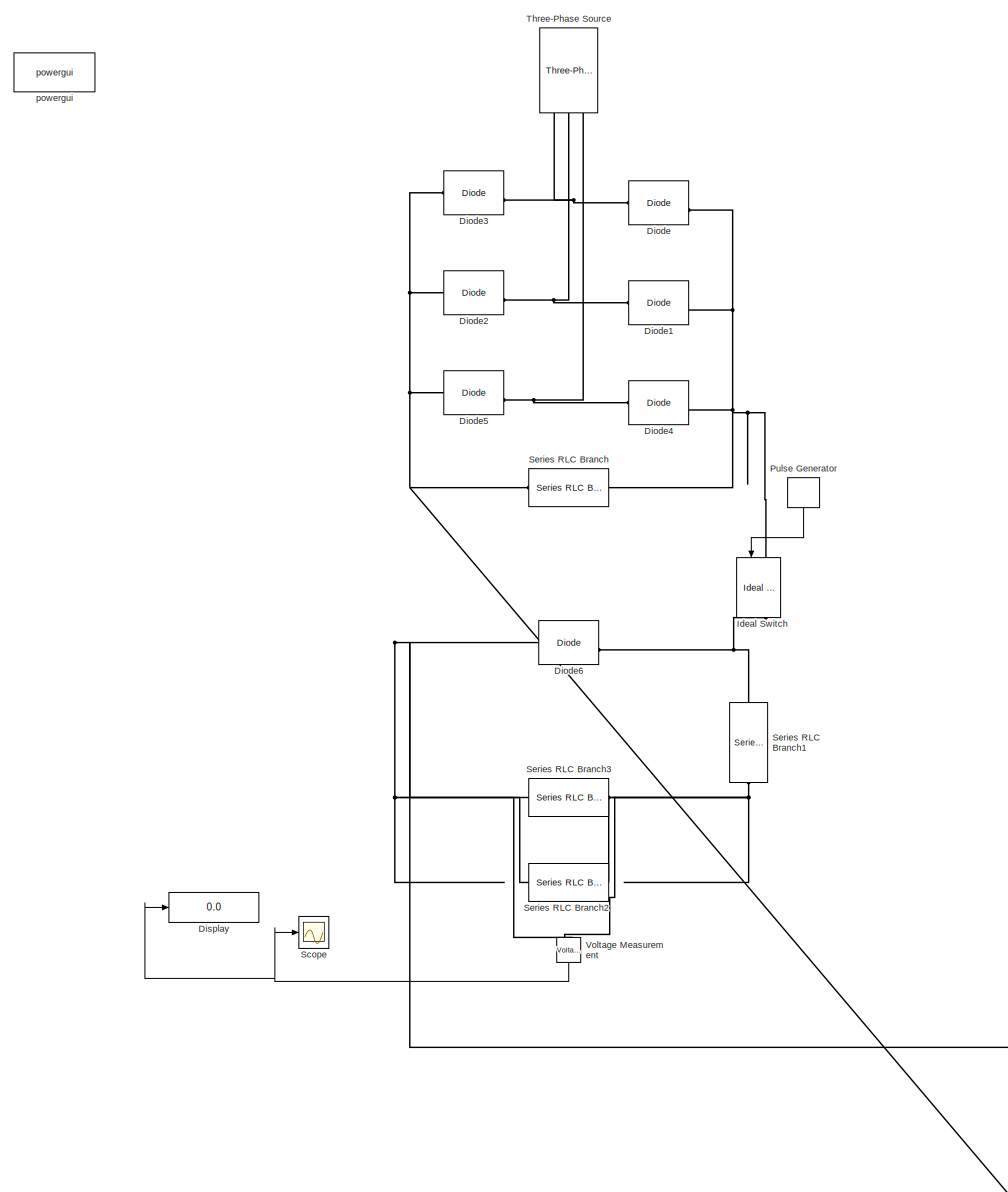
[diagram: root canvas - part 1/1, most of the canvas]
MODEL slx_581d5254fd0e
KIND model
CONFIG AbsTol = auto
CONFIG EnableMultiTasking = off
CONFIG FixedStep = auto
CONFIG MaxStep = auto
CONFIG MinStep = auto
CONFIG RelTol = 1e-3
CONFIG SampleTimeConstraint = Unconstrained
CONFIG SolverName = VariableStepAuto
CONFIG StartTime = 0.0
CONFIG StopTime = 1
BLOCK [Reference] Diode  REF=powerlib/Power
Electronics/Diode
  Ports = [0, 1, 0, 0, 0, 1, 1]
  SourceBlock = powerlib/Power\nElectronics/Diode
  SourceProductBaseCode = PS
  SourceType = Diode
BLOCK [Reference] Diode1  REF=powerlib/Power
Electronics/Diode
  Ports = [0, 1, 0, 0, 0, 1, 1]
  SourceBlock = powerlib/Power\nElectronics/Diode
  SourceProductBaseCode = PS
  SourceType = Diode
BLOCK [Reference] Diode2  REF=powerlib/Power
Electronics/Diode
  Ports = [0, 1, 0, 0, 0, 1, 1]
  SourceBlock = powerlib/Power\nElectronics/Diode
  SourceProductBaseCode = PS
  SourceType = Diode
BLOCK [Reference] Diode3  REF=powerlib/Power
Electronics/Diode
  Ports = [0, 1, 0, 0, 0, 1, 1]
  SourceBlock = powerlib/Power\nElectronics/Diode
  SourceProductBaseCode = PS
  SourceType = Diode
BLOCK [Reference] Diode4  REF=powerlib/Power
Electronics/Diode
  Ports = [0, 1, 0, 0, 0, 1, 1]
  SourceBlock = powerlib/Power\nElectronics/Diode
  SourceProductBaseCode = PS
  SourceType = Diode
BLOCK [Reference] Diode5  REF=powerlib/Power
Electronics/Diode
  Ports = [0, 1, 0, 0, 0, 1, 1]
  SourceBlock = powerlib/Power\nElectronics/Diode
  SourceProductBaseCode = PS
  SourceType = Diode
BLOCK [Reference] Diode6  REF=powerlib/Power
Electronics/Diode
  Ports = [0, 1, 0, 0, 0, 1, 1]
  SourceBlock = powerlib/Power\nElectronics/Diode
  SourceProductBaseCode = PS
  SourceType = Diode
BLOCK [Display] Display
  Decimation = 1
  Ports = [1]
BLOCK [Reference] Ideal Switch  REF=powerlib/Power
Electronics/Ideal Switch
  NameLocation = left
  Ports = [1, 1, 0, 0, 0, 1, 1]
  SourceBlock = powerlib/Power\nElectronics/Ideal Switch
  SourceProductBaseCode = PS
  SourceType = Ideal Switch
BLOCK [DiscretePulseGenerator] Pulse Generator
  NameLocation = left
  Period = 1/10000
  Ports = [0, 1]
  PulseType = Time based
  PulseWidth = 50
BLOCK [Scope] Scope
  Floating = off
  NumInputPorts = 1
  Ports = [1]
  ScopeSpecificationString = Simulink.scopes.TimeScopeBlockCfg('CurrentConfiguration', extmgr.ConfigurationSet(extmgr.Configuration('Core','General UI',true,'FigureColor',[1 1 1]),extmgr.Configuration('Core','Source UI',true),extmgr.Configuration('Sources','WiredSimulink',true),extmgr.Configuration('Visuals','Time Domain',true,'SerializedDisplays',{struct('MinYLimReal','-63.04839','MaxYLimReal','567.43548','YLabelReal','','Mi...<+1470ch>
BLOCK [Reference] Series RLC Branch  REF=powerlib/Elements/Series RLC Branch
  Ports = [0, 0, 0, 0, 0, 1, 1]
  SourceBlock = powerlib/Elements/Series RLC Branch
  SourceProductBaseCode = PS
  SourceType = Series RLC Branch
BLOCK [Reference] Series RLC Branch1  REF=powerlib/Elements/Series RLC Branch
  NameLocation = right
  Ports = [0, 0, 0, 0, 0, 1, 1]
  SourceBlock = powerlib/Elements/Series RLC Branch
  SourceProductBaseCode = PS
  SourceType = Series RLC Branch
BLOCK [Reference] Series RLC Branch2  REF=powerlib/Elements/Series RLC Branch
  Ports = [0, 0, 0, 0, 0, 1, 1]
  SourceBlock = powerlib/Elements/Series RLC Branch
  SourceProductBaseCode = PS
  SourceType = Series RLC Branch
BLOCK [Reference] Series RLC Branch3  REF=powerlib/Elements/Series RLC Branch
  Ports = [0, 0, 0, 0, 0, 1, 1]
  SourceBlock = powerlib/Elements/Series RLC Branch
  SourceProductBaseCode = PS
  SourceType = Series RLC Branch
BLOCK [Reference] Three-Phase Source  REF=powerlib/Electrical
Sources/Three-Phase Source
  NameLocation = left
  Ports = [0, 0, 0, 0, 0, 0, 3]
  SourceBlock = powerlib/Electrical\nSources/Three-Phase Source
  SourceProductBaseCode = PS
  SourceType = Three-Phase Source
BLOCK [Reference] Voltage Measurement  REF=powerlib/Measurements/Voltage Measurement
  NameLocation = left
  Ports = [0, 1, 0, 0, 0, 2]
  SourceBlock = powerlib/Measurements/Voltage Measurement
  SourceProductBaseCode = PS
  SourceType = Voltage Measurement
  UserDataPersistent = on
BLOCK [Reference] powergui  REF=powerlib/powergui
  Ports = []
  Priority = 1
  SourceBlock = powerlib/powergui
  SourceProductBaseCode = PS
  SourceType = PSB option menu block
LINE Pulse Generator:1 -> Ideal Switch:1
NET Voltage Measurement:1 -> Display:1, Scope:1
PNET net1: Diode1:LConn1 -- Diode2:RConn1 -- Three-Phase Source:RConn2
PNET net2: Diode1:RConn1 -- Diode4:RConn1 -- Diode:RConn1 -- Ideal Switch:LConn1 -- Series RLC Branch:RConn1
PNET net3: Diode2:LConn1 -- Diode3:LConn1 -- Diode5:LConn1 -- Diode6:LConn1 -- Series RLC Branch2:LConn1 -- Series RLC Branch3:LConn1 -- Series RLC Branch:LConn1 -- Voltage Measurement:LConn2
PNET net4: Diode3:RConn1 -- Diode:LConn1 -- Three-Phase Source:RConn1
PNET net5: Diode4:LConn1 -- Diode5:RConn1 -- Three-Phase Source:RConn3
PNET net6: Diode6:RConn1 -- Ideal Switch:RConn1 -- Series RLC Branch1:RConn1
PNET net7: Series RLC Branch1:LConn1 -- Series RLC Branch2:RConn1 -- Series RLC Branch3:RConn1 -- Voltage Measurement:LConn1
note: NET lines group one-source signal fan-out (src -> all destinations, sorted); 1:1 wires keep LINE; PNET lines group multi-terminal physical nets as a canonical sorted terminal list (undirected conserving connections); 2-terminal nets keep the pairwise PLINE form
